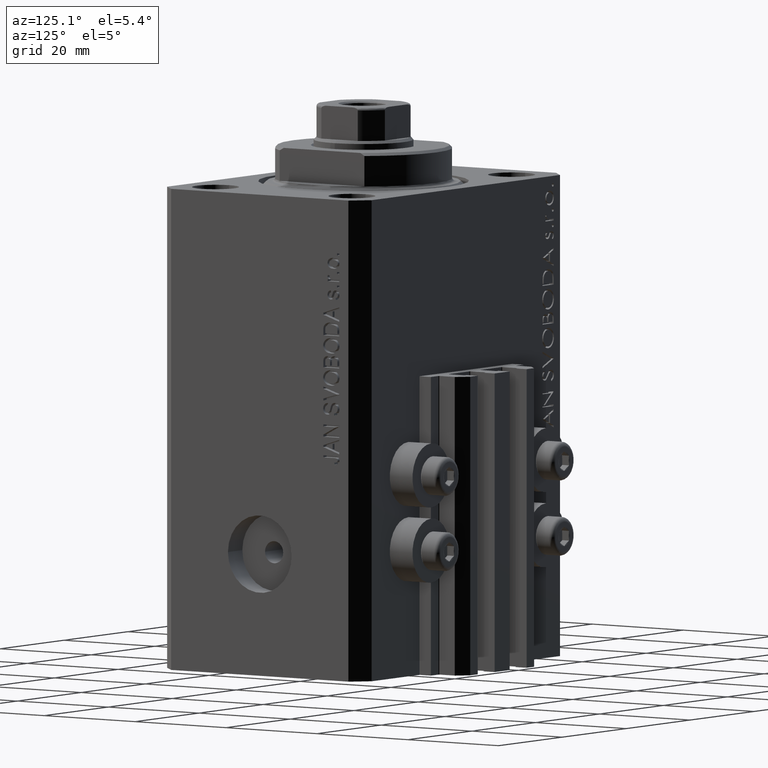
[diagram: clean part render]
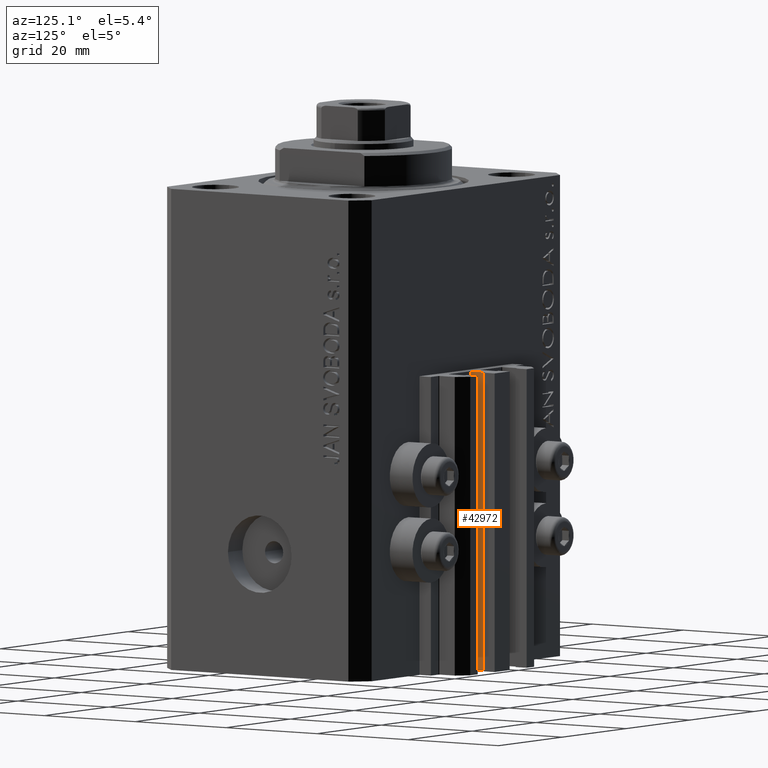
[diagram: same view with one face highlighted and labeled with its STEP entity id]
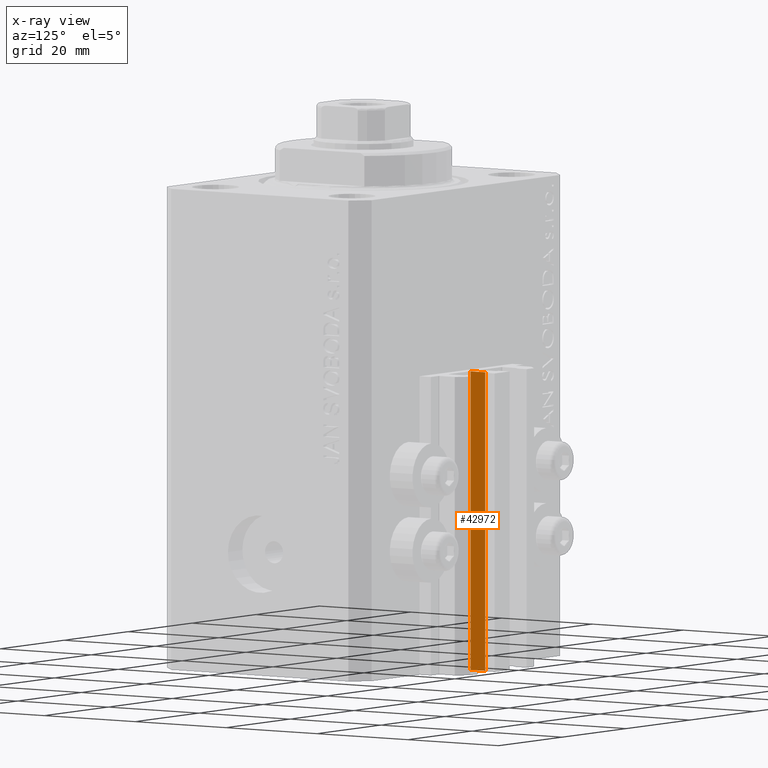
[diagram: x-ray of the same camera — body ghosted, the highlighted face saturated]
A machine part, auxiliary view. The second image highlights one B-rep face of the part: STEP entity #42972.
The next image is the same camera in x-ray: the body ghosted, the highlighted face saturated — about 0% of this face is hidden behind the body in this view.
In plain terms, the highlighted planar face has unit normal (1, 0, 0).
Its self-contained STEP definition (entity closure, byte-faithful):
#715 = CARTESIAN_POINT ( 'NONE',  ( 1.599999999999999645, 24.69999999999949480, -87.00000000000000000 ) ) ;
#764 = FACE_OUTER_BOUND ( 'NONE', #35266, .T. ) ;
#907 = EDGE_CURVE ( 'NONE', #3069, #7693, #23863, .T. ) ;
#3069 = VERTEX_POINT ( 'NONE', #34741 ) ;
#6318 = DIRECTION ( 'NONE',  ( 0.000000000000000000, 1.000000000000000000, 0.000000000000000000 ) ) ;
#7603 = CARTESIAN_POINT ( 'NONE',  ( 1.600000000000000533, 27.89999999999950120, -87.00000000000000000 ) ) ;
#7650 = EDGE_CURVE ( 'NONE', #36166, #3069, #15598, .T. ) ;
#7693 = VERTEX_POINT ( 'NONE', #22789 ) ;
#7965 = EDGE_CURVE ( 'NONE', #24663, #7693, #37338, .T. ) ;
#10505 = ORIENTED_EDGE ( 'NONE', *, *, #7650, .F. ) ;
#11634 = LINE ( 'NONE', #15467, #28407 ) ;
#15403 = PLANE ( 'NONE',  #16646 ) ;
#15467 = CARTESIAN_POINT ( 'NONE',  ( 1.600000000000000533, 24.69999999999949480, -87.00000000000000000 ) ) ;
#15585 = CARTESIAN_POINT ( 'NONE',  ( 1.600000000000000533, 27.89999999999950120, -87.00000000000000000 ) ) ;
#15598 = LINE ( 'NONE', #715, #32535 ) ;
#16646 = AXIS2_PLACEMENT_3D ( 'NONE', #34096, #45366, #42470 ) ;
#18543 = EDGE_CURVE ( 'NONE', #36166, #24663, #11634, .T. ) ;
#19417 = ORIENTED_EDGE ( 'NONE', *, *, #7965, .T. ) ;
#19654 = DIRECTION ( 'NONE',  ( 0.000000000000000000, 0.000000000000000000, 1.000000000000000000 ) ) ;
#22789 = CARTESIAN_POINT ( 'NONE',  ( 1.600000000000000533, 27.89999999999950120, -33.00000000000000000 ) ) ;
#23863 = LINE ( 'NONE', #35353, #34274 ) ;
#24663 = VERTEX_POINT ( 'NONE', #15585 ) ;
#26090 = DIRECTION ( 'NONE',  ( 0.000000000000000000, 0.000000000000000000, 1.000000000000000000 ) ) ;
#28407 = VECTOR ( 'NONE', #30088, 1000.000000000000000 ) ;
#30088 = DIRECTION ( 'NONE',  ( 0.000000000000000000, 1.000000000000000000, 0.000000000000000000 ) ) ;
#31533 = ORIENTED_EDGE ( 'NONE', *, *, #18543, .T. ) ;
#32535 = VECTOR ( 'NONE', #19654, 1000.000000000000000 ) ;
#34096 = CARTESIAN_POINT ( 'NONE',  ( 1.600000000000000533, 24.69999999999949480, -87.00000000000000000 ) ) ;
#34274 = VECTOR ( 'NONE', #6318, 1000.000000000000000 ) ;
#34741 = CARTESIAN_POINT ( 'NONE',  ( 1.599999999999999645, 24.69999999999949480, -33.00000000000000000 ) ) ;
#35266 = EDGE_LOOP ( 'NONE', ( #36470, #10505, #31533, #19417 ) ) ;
#35353 = CARTESIAN_POINT ( 'NONE',  ( 1.600000000000000533, 24.69999999999949480, -33.00000000000000000 ) ) ;
#36166 = VERTEX_POINT ( 'NONE', #47409 ) ;
#36470 = ORIENTED_EDGE ( 'NONE', *, *, #907, .F. ) ;
#37338 = LINE ( 'NONE', #7603, #43285 ) ;
#42470 = DIRECTION ( 'NONE',  ( 0.000000000000000000, 0.000000000000000000, -1.000000000000000000 ) ) ;
#42972 = ADVANCED_FACE ( 'NONE', ( #764 ), #15403, .T. ) ;
#43285 = VECTOR ( 'NONE', #26090, 1000.000000000000000 ) ;
#45366 = DIRECTION ( 'NONE',  ( 1.000000000000000000, 0.000000000000000000, 0.000000000000000000 ) ) ;
#47409 = CARTESIAN_POINT ( 'NONE',  ( 1.599999999999999645, 24.69999999999949480, -87.00000000000000000 ) ) ;